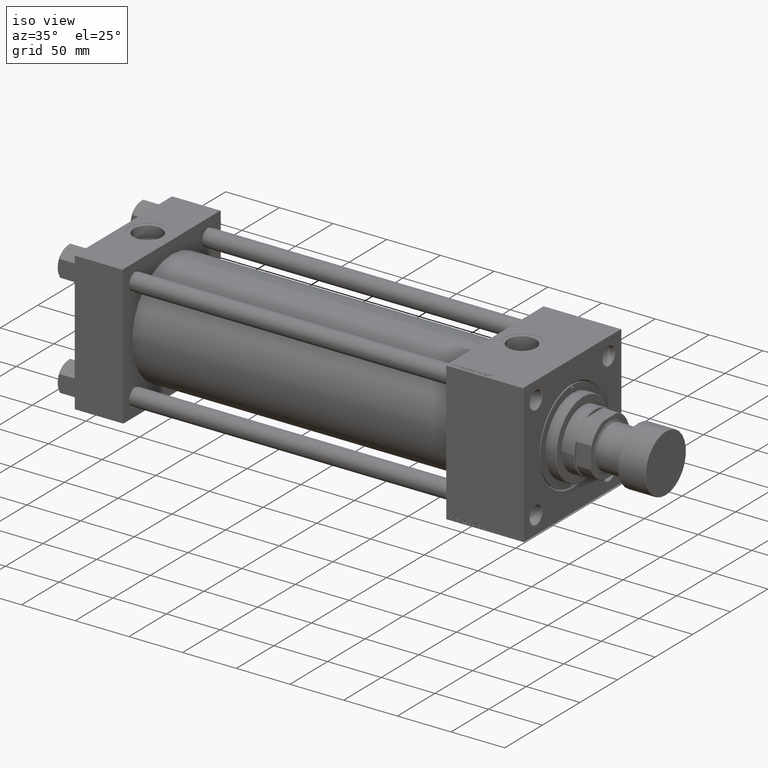
[diagram: clean part render]
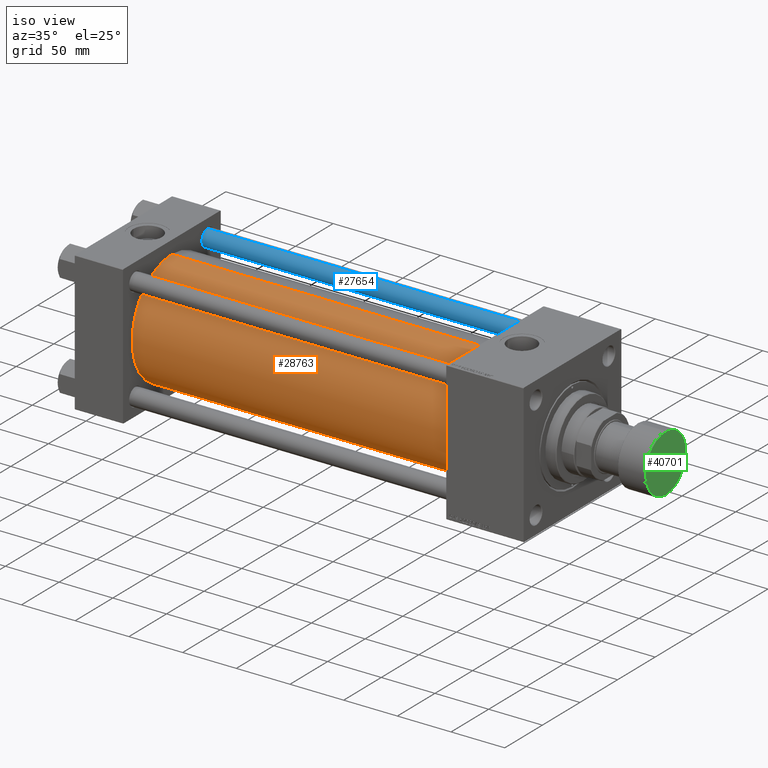
[diagram: same view with three faces highlighted in distinct colors, each labeled with its STEP entity id]
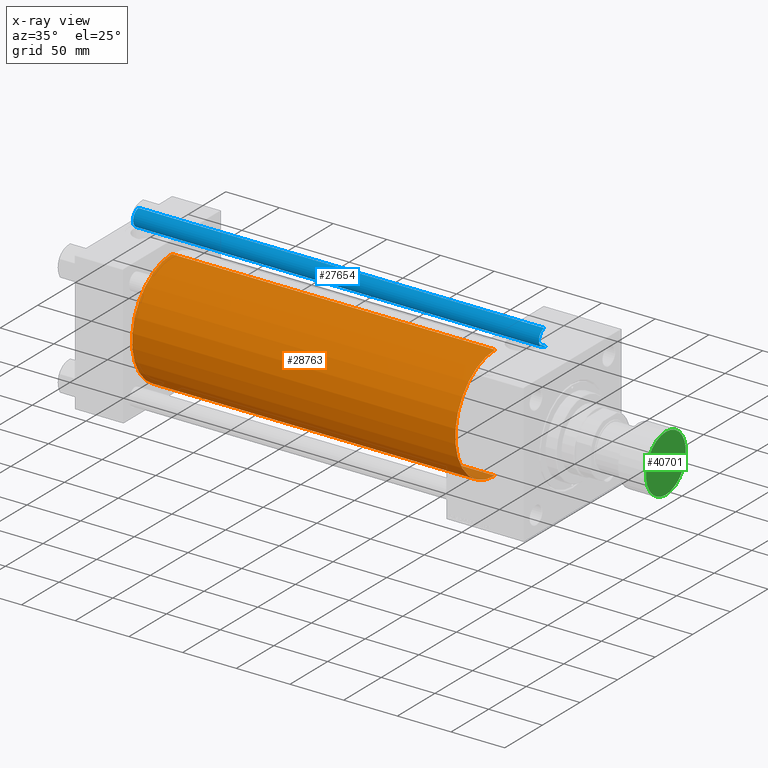
[diagram: x-ray of the same camera — body ghosted, the three highlighted faces saturated]
A machine part, iso view with three faces highlighted in distinct colors.
The next image is the same camera in x-ray (body ghosted, the three faces saturated) — at least one of them is partly hidden behind the body in this view.
Their STEP definitions:

[orange] entity #28763 — the highlighted cylindrical surface (partial cylindrical patch) has radius 53 mm, axis along (-1, -0, -0).
#95 = DIRECTION ( 'NONE',  ( 0.000000000000000000, 0.000000000000000000, -1.000000000000000000 ) ) ;
#2951 = ORIENTED_EDGE ( 'NONE', *, *, #40658, .T. ) ;
#5158 = ORIENTED_EDGE ( 'NONE', *, *, #41165, .F. ) ;
#5170 = CARTESIAN_POINT ( 'NONE',  ( 44.99999999999998579, -2.602085213965210642E-15, 0.000000000000000000 ) ) ;
#6938 = CARTESIAN_POINT ( 'NONE',  ( 346.0000000000000000, 3.888542821515762466E-15, -53.00000000000000711 ) ) ;
#11187 = ORIENTED_EDGE ( 'NONE', *, *, #13220, .F. ) ;
#11543 = VECTOR ( 'NONE', #51320, 1000.000000000000000 ) ;
#13220 = EDGE_CURVE ( 'NONE', #18089, #24320, #15558, .T. ) ;
#14859 = CARTESIAN_POINT ( 'NONE',  ( 346.0000000000000000, -2.602085213965210642E-15, 0.000000000000000000 ) ) ;
#15558 = CIRCLE ( 'NONE', #16432, 53.00000000000000711 ) ;
#15642 = FACE_OUTER_BOUND ( 'NONE', #50215, .T. ) ;
#15810 = EDGE_CURVE ( 'NONE', #51809, #51764, #28517, .T. ) ;
#15865 = VECTOR ( 'NONE', #46624, 1000.000000000000000 ) ;
#16432 = AXIS2_PLACEMENT_3D ( 'NONE', #48956, #48432, #95 ) ;
#16510 = AXIS2_PLACEMENT_3D ( 'NONE', #5170, #25065, #33643 ) ;
#17900 = LINE ( 'NONE', #30268, #15865 ) ;
#18089 = VERTEX_POINT ( 'NONE', #24122 ) ;
#18566 = CARTESIAN_POINT ( 'NONE',  ( 346.0000000000000000, -2.602085213965210642E-15, 53.00000000000000711 ) ) ;
#18894 = DIRECTION ( 'NONE',  ( 0.000000000000000000, 0.000000000000000000, 1.000000000000000000 ) ) ;
#22868 = LINE ( 'NONE', #18566, #11543 ) ;
#24122 = CARTESIAN_POINT ( 'NONE',  ( 346.0000000000000000, -2.602085213965210642E-15, 53.00000000000000711 ) ) ;
#24320 = VERTEX_POINT ( 'NONE', #6938 ) ;
#25065 = DIRECTION ( 'NONE',  ( 1.000000000000000000, -0.000000000000000000, 0.000000000000000000 ) ) ;
#27489 = DIRECTION ( 'NONE',  ( -1.000000000000000000, -0.000000000000000000, -0.000000000000000000 ) ) ;
#28348 = ORIENTED_EDGE ( 'NONE', *, *, #15810, .T. ) ;
#28517 = CIRCLE ( 'NONE', #16510, 53.00000000000000711 ) ;
#28763 = ADVANCED_FACE ( 'NONE', ( #15642 ), #30973, .T. ) ;
#30268 = CARTESIAN_POINT ( 'NONE',  ( 346.0000000000000000, 3.888542821515762466E-15, -53.00000000000000711 ) ) ;
#30973 = CYLINDRICAL_SURFACE ( 'NONE', #48960, 53.00000000000000711 ) ;
#33643 = DIRECTION ( 'NONE',  ( 0.000000000000000000, 0.000000000000000000, 1.000000000000000000 ) ) ;
#40658 = EDGE_CURVE ( 'NONE', #18089, #51809, #22868, .T. ) ;
#41165 = EDGE_CURVE ( 'NONE', #24320, #51764, #17900, .T. ) ;
#46624 = DIRECTION ( 'NONE',  ( -1.000000000000000000, -0.000000000000000000, -0.000000000000000000 ) ) ;
#48432 = DIRECTION ( 'NONE',  ( 1.000000000000000000, 0.000000000000000000, 0.000000000000000000 ) ) ;
#48956 = CARTESIAN_POINT ( 'NONE',  ( 346.0000000000000000, -2.602085213965210642E-15, 0.000000000000000000 ) ) ;
#48960 = AXIS2_PLACEMENT_3D ( 'NONE', #14859, #27489, #18894 ) ;
#49543 = CARTESIAN_POINT ( 'NONE',  ( 44.99999999999998579, -2.602085213965210642E-15, 53.00000000000000711 ) ) ;
#50215 = EDGE_LOOP ( 'NONE', ( #5158, #11187, #2951, #28348 ) ) ;
#51320 = DIRECTION ( 'NONE',  ( -1.000000000000000000, -0.000000000000000000, -0.000000000000000000 ) ) ;
#51764 = VERTEX_POINT ( 'NONE', #52781 ) ;
#51809 = VERTEX_POINT ( 'NONE', #49543 ) ;
#52781 = CARTESIAN_POINT ( 'NONE',  ( 44.99999999999998579, 3.888542821515762466E-15, -53.00000000000000711 ) ) ;

[blue] entity #27654 — the highlighted cylindrical surface (edge-blend (fillet) strip) has radius 8 mm, axis along (-1, 0, 0).
#4079 = DIRECTION ( 'NONE',  ( 0.000000000000000000, 0.000000000000000000, -1.000000000000000000 ) ) ;
#5389 = VERTEX_POINT ( 'NONE', #36709 ) ;
#10501 = EDGE_CURVE ( 'NONE', #47668, #18823, #16668, .T. ) ;
#11844 = CARTESIAN_POINT ( 'NONE',  ( -8.000000000000000000, 0.000000000000000000, 379.0000000000000000 ) ) ;
#16589 = CARTESIAN_POINT ( 'NONE',  ( 8.000000000000000000, 9.797174393178825657E-16, 378.4999999999999432 ) ) ;
#16668 = LINE ( 'NONE', #11844, #42020 ) ;
#18823 = VERTEX_POINT ( 'NONE', #46417 ) ;
#19809 = AXIS2_PLACEMENT_3D ( 'NONE', #42227, #41958, #25863 ) ;
#21205 = ORIENTED_EDGE ( 'NONE', *, *, #31850, .F. ) ;
#21258 = LINE ( 'NONE', #37615, #52526 ) ;
#21837 = CYLINDRICAL_SURFACE ( 'NONE', #19809, 8.000000000000000000 ) ;
#22408 = ORIENTED_EDGE ( 'NONE', *, *, #39410, .T. ) ;
#23715 = CARTESIAN_POINT ( 'NONE',  ( 0.000000000000000000, 0.000000000000000000, 378.4999999999999432 ) ) ;
#25024 = DIRECTION ( 'NONE',  ( -0.000000000000000000, -0.000000000000000000, -1.000000000000000000 ) ) ;
#25863 = DIRECTION ( 'NONE',  ( -1.000000000000000000, 0.000000000000000000, 0.000000000000000000 ) ) ;
#27654 = ADVANCED_FACE ( 'NONE', ( #40656 ), #21837, .T. ) ;
#28734 = CARTESIAN_POINT ( 'NONE',  ( 0.000000000000000000, 0.000000000000000000, 0.4999999999998894218 ) ) ;
#30919 = ORIENTED_EDGE ( 'NONE', *, *, #31763, .T. ) ;
#31763 = EDGE_CURVE ( 'NONE', #45686, #47668, #45641, .T. ) ;
#31850 = EDGE_CURVE ( 'NONE', #45686, #5389, #21258, .T. ) ;
#31974 = EDGE_LOOP ( 'NONE', ( #21205, #30919, #50448, #22408 ) ) ;
#36509 = DIRECTION ( 'NONE',  ( -0.000000000000000000, -0.000000000000000000, 1.000000000000000000 ) ) ;
#36709 = CARTESIAN_POINT ( 'NONE',  ( 8.000000000000000000, 9.797174393178825657E-16, 0.4999999999998894218 ) ) ;
#36771 = DIRECTION ( 'NONE',  ( 1.000000000000000000, 0.000000000000000000, 0.000000000000000000 ) ) ;
#37212 = CIRCLE ( 'NONE', #38932, 8.000000000000000000 ) ;
#37615 = CARTESIAN_POINT ( 'NONE',  ( 8.000000000000000000, 9.797174393178825657E-16, 379.0000000000000000 ) ) ;
#38784 = AXIS2_PLACEMENT_3D ( 'NONE', #23715, #4079, #40072 ) ;
#38932 = AXIS2_PLACEMENT_3D ( 'NONE', #28734, #36509, #36771 ) ;
#39410 = EDGE_CURVE ( 'NONE', #18823, #5389, #37212, .T. ) ;
#40072 = DIRECTION ( 'NONE',  ( 1.000000000000000000, 0.000000000000000000, 0.000000000000000000 ) ) ;
#40656 = FACE_OUTER_BOUND ( 'NONE', #31974, .T. ) ;
#41092 = DIRECTION ( 'NONE',  ( -0.000000000000000000, -0.000000000000000000, -1.000000000000000000 ) ) ;
#41958 = DIRECTION ( 'NONE',  ( -0.000000000000000000, -0.000000000000000000, -1.000000000000000000 ) ) ;
#42020 = VECTOR ( 'NONE', #41092, 1000.000000000000000 ) ;
#42227 = CARTESIAN_POINT ( 'NONE',  ( 0.000000000000000000, 0.000000000000000000, 379.0000000000000000 ) ) ;
#45641 = CIRCLE ( 'NONE', #38784, 8.000000000000000000 ) ;
#45686 = VERTEX_POINT ( 'NONE', #16589 ) ;
#46417 = CARTESIAN_POINT ( 'NONE',  ( -8.000000000000000000, 0.000000000000000000, 0.4999999999998894218 ) ) ;
#46992 = CARTESIAN_POINT ( 'NONE',  ( -8.000000000000000000, 0.000000000000000000, 378.4999999999999432 ) ) ;
#47668 = VERTEX_POINT ( 'NONE', #46992 ) ;
#50448 = ORIENTED_EDGE ( 'NONE', *, *, #10501, .T. ) ;
#52526 = VECTOR ( 'NONE', #25024, 1000.000000000000000 ) ;

[green] entity #40701 — the highlighted planar face has unit normal (1, 0, 0).
#1479 = EDGE_LOOP ( 'NONE', ( #23330, #18799 ) ) ;
#2985 = DIRECTION ( 'NONE',  ( 1.000000000000000000, 0.000000000000000000, 0.000000000000000000 ) ) ;
#4632 = CARTESIAN_POINT ( 'NONE',  ( -26.50000000000000000, 3.275930187719169552E-15, 0.000000000000000000 ) ) ;
#8580 = CARTESIAN_POINT ( 'NONE',  ( 0.000000000000000000, 0.000000000000000000, 0.000000000000000000 ) ) ;
#11037 = CARTESIAN_POINT ( 'NONE',  ( 0.000000000000000000, 0.000000000000000000, 0.000000000000000000 ) ) ;
#15599 = CARTESIAN_POINT ( 'NONE',  ( 0.000000000000000000, 0.000000000000000000, 0.000000000000000000 ) ) ;
#18799 = ORIENTED_EDGE ( 'NONE', *, *, #49940, .T. ) ;
#23330 = ORIENTED_EDGE ( 'NONE', *, *, #44676, .T. ) ;
#26998 = AXIS2_PLACEMENT_3D ( 'NONE', #15599, #36788, #31984 ) ;
#27158 = DIRECTION ( 'NONE',  ( 0.000000000000000000, 0.000000000000000000, 1.000000000000000000 ) ) ;
#31721 = FACE_OUTER_BOUND ( 'NONE', #1479, .T. ) ;
#31984 = DIRECTION ( 'NONE',  ( 1.000000000000000000, 0.000000000000000000, -0.000000000000000000 ) ) ;
#35780 = VERTEX_POINT ( 'NONE', #4632 ) ;
#36573 = CIRCLE ( 'NONE', #43427, 26.50000000000000000 ) ;
#36788 = DIRECTION ( 'NONE',  ( 0.000000000000000000, 0.000000000000000000, 1.000000000000000000 ) ) ;
#37394 = CIRCLE ( 'NONE', #44249, 26.50000000000000000 ) ;
#40701 = ADVANCED_FACE ( 'NONE', ( #31721 ), #52393, .T. ) ;
#43427 = AXIS2_PLACEMENT_3D ( 'NONE', #11037, #27158, #2985 ) ;
#44249 = AXIS2_PLACEMENT_3D ( 'NONE', #8580, #50717, #49930 ) ;
#44676 = EDGE_CURVE ( 'NONE', #49518, #35780, #37394, .T. ) ;
#47068 = CARTESIAN_POINT ( 'NONE',  ( 26.50000000000000000, 0.000000000000000000, 0.000000000000000000 ) ) ;
#49518 = VERTEX_POINT ( 'NONE', #47068 ) ;
#49930 = DIRECTION ( 'NONE',  ( 1.000000000000000000, 0.000000000000000000, 0.000000000000000000 ) ) ;
#49940 = EDGE_CURVE ( 'NONE', #35780, #49518, #36573, .T. ) ;
#50717 = DIRECTION ( 'NONE',  ( 0.000000000000000000, 0.000000000000000000, 1.000000000000000000 ) ) ;
#52393 = PLANE ( 'NONE',  #26998 ) ;